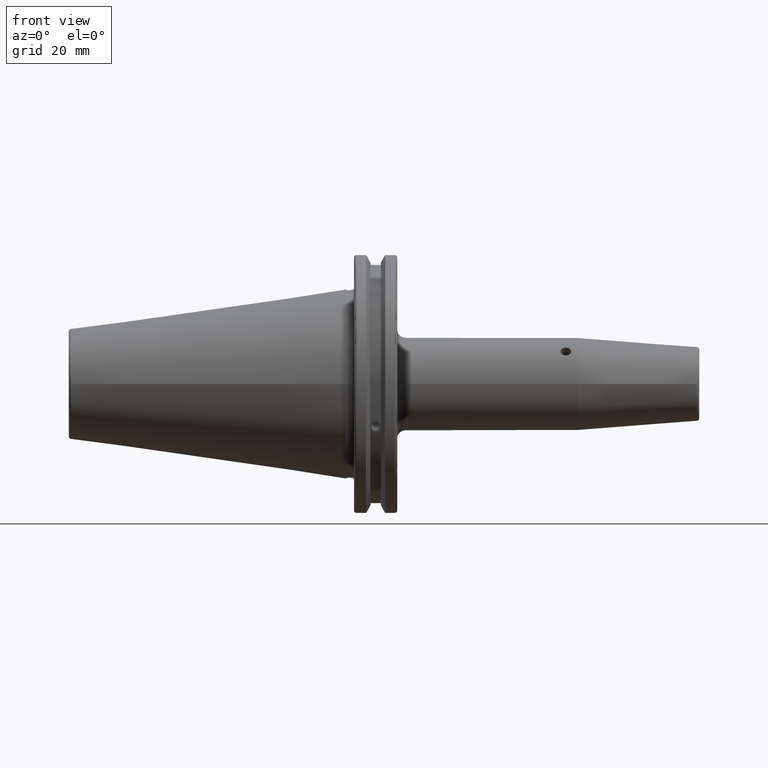
[diagram: clean part render]
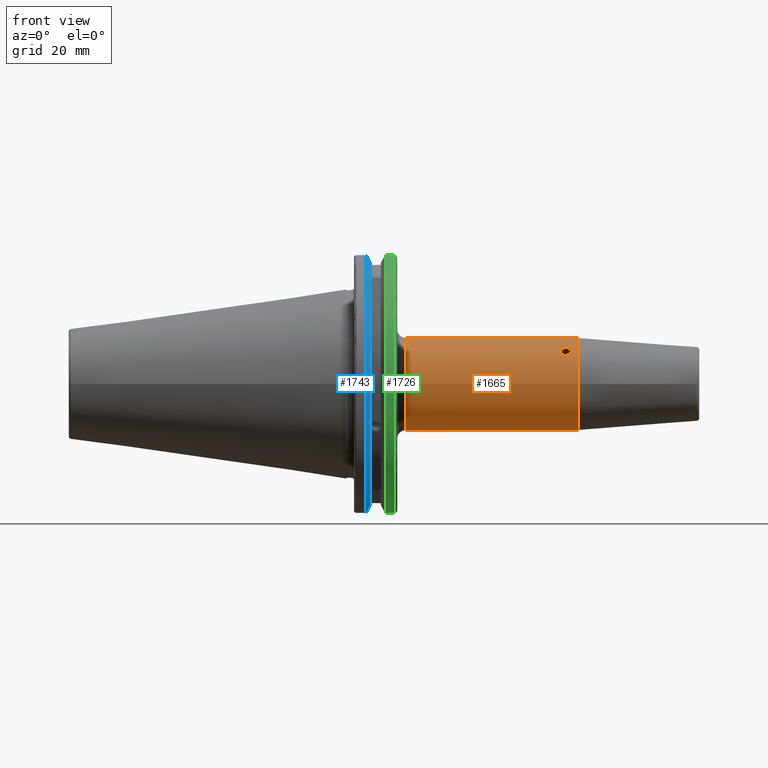
[diagram: same view with three faces highlighted in distinct colors, each labeled with its STEP entity id]
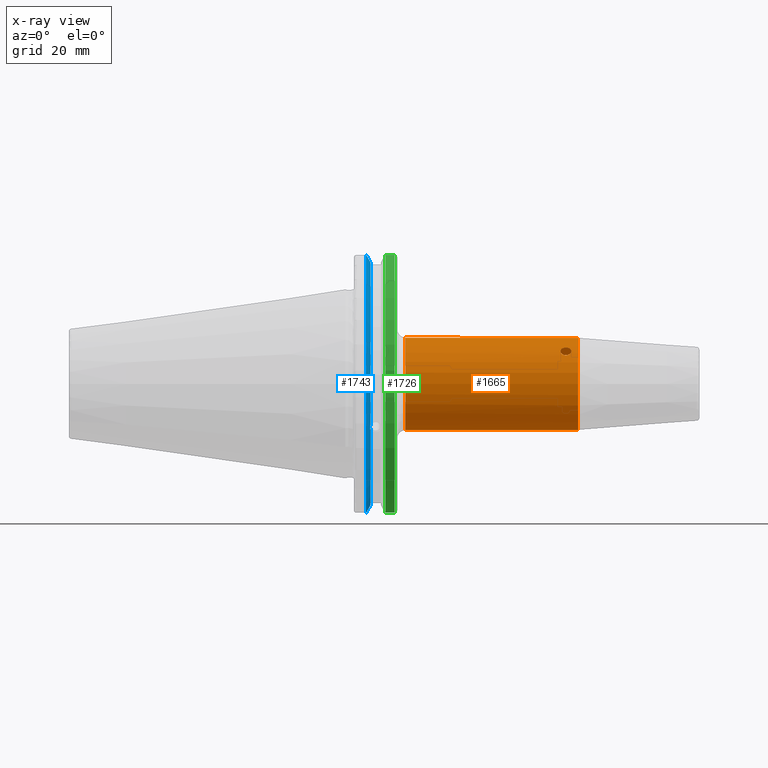
[diagram: x-ray of the same camera — body ghosted, the three highlighted faces saturated]
A machine part, front view with three faces highlighted in distinct colors.
The next image is the same camera in x-ray (body ghosted, the three faces saturated) — at least one of them is partly hidden behind the body in this view.
Their STEP definitions:

[orange] entity #1665 — the highlighted cylindrical surface (bore or boss wall) has radius 17 mm, axis along (1, 0, 0).
#34=FACE_BOUND('',#311,.T.);
#130=CIRCLE('',#1796,17.);
#131=CIRCLE('',#1798,17.);
#134=CIRCLE('',#1801,17.);
#212=FACE_OUTER_BOUND('',#310,.T.);
#310=EDGE_LOOP('',(#1184,#1185,#1186,#1187,#1188));
#311=EDGE_LOOP('',(#1189,#1190));
#429=B_SPLINE_CURVE_WITH_KNOTS('',3,(#2638,#2639,#2640,#2641,#2642,#2643,
#2644,#2645,#2646,#2647),.UNSPECIFIED.,.F.,.F.,(4,2,2,2,4),(0.,0.0754126000469099,
0.15082520009382,0.22623730663015,0.30164941316648),.UNSPECIFIED.);
#430=B_SPLINE_CURVE_WITH_KNOTS('',3,(#2648,#2649,#2650,#2651,#2652,#2653,
#2654,#2655,#2656,#2657,#2658,#2659,#2660,#2661,#2662,#2663,#2664,#2665,
#2666,#2667,#2668,#2669,#2670,#2671,#2672,#2673),.UNSPECIFIED.,.F.,.F.,
(4,2,2,2,2,2,2,2,2,2,2,2,4),(0.30164941316648,0.37706151970281,0.45247362623914,
0.527886226286049,0.603298826332958,0.678711426379868,0.754124026426777,
0.829536132963107,0.904948239499437,0.980360346035768,1.0557724525721,1.13118505261901,
1.20659765266592),.UNSPECIFIED.);
#478=LINE('',#2711,#579);
#579=VECTOR('',#2027,17.);
#694=VERTEX_POINT('',#2636);
#695=VERTEX_POINT('',#2637);
#703=VERTEX_POINT('',#2699);
#704=VERTEX_POINT('',#2703);
#705=VERTEX_POINT('',#2704);
#873=EDGE_CURVE('',#694,#695,#429,.T.);
#874=EDGE_CURVE('',#695,#694,#430,.T.);
#888=EDGE_CURVE('',#703,#703,#130,.T.);
#889=EDGE_CURVE('',#704,#705,#131,.T.);
#892=EDGE_CURVE('',#705,#704,#134,.T.);
#893=EDGE_CURVE('',#703,#704,#478,.T.);
#1184=ORIENTED_EDGE('',*,*,#888,.F.);
#1185=ORIENTED_EDGE('',*,*,#893,.T.);
#1186=ORIENTED_EDGE('',*,*,#892,.F.);
#1187=ORIENTED_EDGE('',*,*,#889,.F.);
#1188=ORIENTED_EDGE('',*,*,#893,.F.);
#1189=ORIENTED_EDGE('',*,*,#873,.T.);
#1190=ORIENTED_EDGE('',*,*,#874,.T.);
#1625=CYLINDRICAL_SURFACE('',#1802,17.);
#1665=ADVANCED_FACE('',(#212,#34),#1625,.T.);
#1796=AXIS2_PLACEMENT_3D('',#2701,#2013,#2014);
#1798=AXIS2_PLACEMENT_3D('',#2705,#2017,#2018);
#1801=AXIS2_PLACEMENT_3D('',#2709,#2023,#2024);
#1802=AXIS2_PLACEMENT_3D('',#2710,#2025,#2026);
#2013=DIRECTION('center_axis',(1.,0.,0.));
#2014=DIRECTION('ref_axis',(0.,0.,-1.));
#2017=DIRECTION('center_axis',(-1.,0.,0.));
#2018=DIRECTION('ref_axis',(0.,-1.,-1.22464679914735E-16));
#2023=DIRECTION('center_axis',(-1.,0.,0.));
#2024=DIRECTION('ref_axis',(0.,-1.,-1.22464679914735E-16));
#2025=DIRECTION('center_axis',(1.,0.,0.));
#2026=DIRECTION('ref_axis',(0.,1.,0.));
#2027=DIRECTION('',(-1.,0.,0.));
#2636=CARTESIAN_POINT('',(81.,-10.5231228239402,13.3515499486864));
#2637=CARTESIAN_POINT('',(83.,-12.0208152801713,12.0208152801713));
#2638=CARTESIAN_POINT('Ctrl Pts',(81.,-10.5231228239402,13.3515499486864));
#2639=CARTESIAN_POINT('Ctrl Pts',(81.2513753334897,-10.5231228239402,13.3515499486864));
#2640=CARTESIAN_POINT('Ctrl Pts',(81.5193455474418,-10.5630593289444,13.3203725372364));
#2641=CARTESIAN_POINT('Ctrl Pts',(82.0120344753946,-10.7232208565799,13.1917808242572));
#2642=CARTESIAN_POINT('Ctrl Pts',(82.2367732201471,-10.8432053092381,13.0941438477263));
#2643=CARTESIAN_POINT('Ctrl Pts',(82.5916527434048,-11.1150909025522,12.8641540062409));
#2644=CARTESIAN_POINT('Ctrl Pts',(82.7455352407202,-11.285145452808,12.7163792601007));
#2645=CARTESIAN_POINT('Ctrl Pts',(82.9497152845526,-11.6492377398047,12.3837017671472));
#2646=CARTESIAN_POINT('Ctrl Pts',(83.,-11.8430672404533,12.1985633198893));
#2647=CARTESIAN_POINT('Ctrl Pts',(83.,-12.0208152801713,12.0208152801713));
#2648=CARTESIAN_POINT('Ctrl Pts',(83.,-12.0208152801713,12.0208152801713));
#2649=CARTESIAN_POINT('Ctrl Pts',(83.,-12.1985633198893,11.8430672404533));
#2650=CARTESIAN_POINT('Ctrl Pts',(82.9497152845526,-12.3837017671472,11.6492377398047));
#2651=CARTESIAN_POINT('Ctrl Pts',(82.7455352407202,-12.7163792601007,11.285145452808));
#2652=CARTESIAN_POINT('Ctrl Pts',(82.5916527434047,-12.8641540062409,11.1150909025522));
#2653=CARTESIAN_POINT('Ctrl Pts',(82.2367732201471,-13.0941438477263,10.8432053092381));
#2654=CARTESIAN_POINT('Ctrl Pts',(82.0120344753946,-13.1917808242572,10.7232208565799));
#2655=CARTESIAN_POINT('Ctrl Pts',(81.5193455474418,-13.3203725372364,10.5630593289444));
#2656=CARTESIAN_POINT('Ctrl Pts',(81.2513753334897,-13.3515499486864,10.5231228239402));
#2657=CARTESIAN_POINT('Ctrl Pts',(80.7486246665103,-13.3515499486864,10.5231228239402));
#2658=CARTESIAN_POINT('Ctrl Pts',(80.4806544525582,-13.3203725372364,10.5630593289444));
#2659=CARTESIAN_POINT('Ctrl Pts',(79.9879655246054,-13.1917808242572,10.7232208565799));
#2660=CARTESIAN_POINT('Ctrl Pts',(79.7632267798529,-13.0941438477263,10.8432053092381));
#2661=CARTESIAN_POINT('Ctrl Pts',(79.4083472565953,-12.8641540062409,11.1150909025522));
#2662=CARTESIAN_POINT('Ctrl Pts',(79.2544647592798,-12.7163792601007,11.285145452808));
#2663=CARTESIAN_POINT('Ctrl Pts',(79.0502847154474,-12.3837017671472,11.6492377398047));
#2664=CARTESIAN_POINT('Ctrl Pts',(79.,-12.1985633198893,11.8430672404533));
#2665=CARTESIAN_POINT('Ctrl Pts',(79.,-11.8430672404533,12.1985633198893));
#2666=CARTESIAN_POINT('Ctrl Pts',(79.0502847154474,-11.6492377398047,12.3837017671472));
#2667=CARTESIAN_POINT('Ctrl Pts',(79.2544647592798,-11.285145452808,12.7163792601007));
#2668=CARTESIAN_POINT('Ctrl Pts',(79.4083472565953,-11.1150909025522,12.8641540062409));
#2669=CARTESIAN_POINT('Ctrl Pts',(79.7632267798529,-10.8432053092381,13.0941438477263));
#2670=CARTESIAN_POINT('Ctrl Pts',(79.9879655246054,-10.7232208565799,13.1917808242572));
#2671=CARTESIAN_POINT('Ctrl Pts',(80.4806544525582,-10.5630593289444,13.3203725372364));
#2672=CARTESIAN_POINT('Ctrl Pts',(80.7486246665103,-10.5231228239402,13.3515499486864));
#2673=CARTESIAN_POINT('Ctrl Pts',(81.,-10.5231228239402,13.3515499486864));
#2699=CARTESIAN_POINT('',(85.5282834233885,-17.,-2.0818995585505E-15));
#2701=CARTESIAN_POINT('Origin',(85.5282834233885,0.,0.));
#2703=CARTESIAN_POINT('',(22.05,-17.,-2.0818995585505E-15));
#2704=CARTESIAN_POINT('',(22.05,-2.0818995585505E-15,-17.));
#2705=CARTESIAN_POINT('Origin',(22.05,0.,0.));
#2709=CARTESIAN_POINT('Origin',(22.05,0.,0.));
#2710=CARTESIAN_POINT('Origin',(52.2891417116942,0.,0.));
#2711=CARTESIAN_POINT('',(52.2891417116942,-17.,-2.0818995585505E-15));

[blue] entity #1743 — the highlighted conical surface has half-angle 60 deg.
#25=(
BOUNDED_CURVE()
B_SPLINE_CURVE(2,(#3441,#3442,#3443),.UNSPECIFIED.,.F.,.F.)
B_SPLINE_CURVE_WITH_KNOTS((3,3),(0.,0.275823910674601),.UNSPECIFIED.)
CURVE()
GEOMETRIC_REPRESENTATION_ITEM()
RATIONAL_B_SPLINE_CURVE((1.,1.00038235573593,1.00012873636487))
REPRESENTATION_ITEM('')
);
#26=(
BOUNDED_CURVE()
B_SPLINE_CURVE(2,(#3453,#3454,#3455),.UNSPECIFIED.,.F.,.F.)
B_SPLINE_CURVE_WITH_KNOTS((3,3),(0.0558332664507492,0.331657177124507),
 .UNSPECIFIED.)
CURVE()
GEOMETRIC_REPRESENTATION_ITEM()
RATIONAL_B_SPLINE_CURVE((1.00012873636807,1.00038235574544,1.))
REPRESENTATION_ITEM('')
);
#27=(
BOUNDED_CURVE()
B_SPLINE_CURVE(2,(#3488,#3489,#3490),.UNSPECIFIED.,.F.,.F.)
B_SPLINE_CURVE_WITH_KNOTS((3,3),(0.,0.0648240472897372),.UNSPECIFIED.)
CURVE()
GEOMETRIC_REPRESENTATION_ITEM()
RATIONAL_B_SPLINE_CURVE((1.,1.00011477674836,1.00019140645948))
REPRESENTATION_ITEM('')
);
#28=(
BOUNDED_CURVE()
B_SPLINE_CURVE(2,(#3496,#3497,#3498),.UNSPECIFIED.,.F.,.F.)
B_SPLINE_CURVE_WITH_KNOTS((3,3),(0.325260944932348,0.390084992222201),
 .UNSPECIFIED.)
CURVE()
GEOMETRIC_REPRESENTATION_ITEM()
RATIONAL_B_SPLINE_CURVE((1.00019140645916,1.00011477674817,1.))
REPRESENTATION_ITEM('')
);
#117=CONICAL_SURFACE('',#1943,47.8172386482472,1.0471975511966);
#156=CIRCLE('',#1846,46.4219772964944);
#180=CIRCLE('',#1897,49.2125);
#196=CIRCLE('',#1944,46.4219772964944);
#290=FACE_OUTER_BOUND('',#410,.T.);
#410=EDGE_LOOP('',(#1599,#1600,#1601,#1602,#1603,#1604,#1605,#1606));
#441=B_SPLINE_CURVE_WITH_KNOTS('',3,(#2977,#2978,#2979,#2980,#2981,#2982,
#2983,#2984,#2985,#2986,#2987,#2988,#2989,#2990),.UNSPECIFIED.,.F.,.F.,
(4,2,2,2,2,2,4),(0.426712868358719,0.441644498666906,0.48031331322313,0.518982127779354,
0.557650942335578,0.596319756891801,0.611251387199988),.UNSPECIFIED.);
#742=VERTEX_POINT('',#2974);
#743=VERTEX_POINT('',#2976);
#760=VERTEX_POINT('',#3067);
#820=VERTEX_POINT('',#3438);
#821=VERTEX_POINT('',#3440);
#824=VERTEX_POINT('',#3452);
#828=VERTEX_POINT('',#3486);
#829=VERTEX_POINT('',#3492);
#938=EDGE_CURVE('',#743,#742,#441,.T.);
#961=EDGE_CURVE('',#743,#760,#156,.T.);
#1043=EDGE_CURVE('',#821,#820,#25,.T.);
#1049=EDGE_CURVE('',#824,#760,#26,.T.);
#1057=EDGE_CURVE('',#828,#820,#27,.T.);
#1059=EDGE_CURVE('',#828,#829,#180,.T.);
#1060=EDGE_CURVE('',#824,#829,#28,.T.);
#1102=EDGE_CURVE('',#821,#742,#196,.T.);
#1599=ORIENTED_EDGE('',*,*,#938,.T.);
#1600=ORIENTED_EDGE('',*,*,#1102,.F.);
#1601=ORIENTED_EDGE('',*,*,#1043,.T.);
#1602=ORIENTED_EDGE('',*,*,#1057,.F.);
#1603=ORIENTED_EDGE('',*,*,#1059,.T.);
#1604=ORIENTED_EDGE('',*,*,#1060,.F.);
#1605=ORIENTED_EDGE('',*,*,#1049,.T.);
#1606=ORIENTED_EDGE('',*,*,#961,.F.);
#1743=ADVANCED_FACE('',(#290),#117,.T.);
#1846=AXIS2_PLACEMENT_3D('',#3068,#2142,#2143);
#1897=AXIS2_PLACEMENT_3D('',#3494,#2286,#2287);
#1943=AXIS2_PLACEMENT_3D('',#3610,#2399,#2400);
#1944=AXIS2_PLACEMENT_3D('',#3611,#2401,#2402);
#2142=DIRECTION('center_axis',(1.,0.,0.));
#2143=DIRECTION('ref_axis',(0.,0.,-1.));
#2286=DIRECTION('center_axis',(1.,0.,0.));
#2287=DIRECTION('ref_axis',(0.,0.,-1.));
#2399=DIRECTION('center_axis',(-1.,0.,0.));
#2400=DIRECTION('ref_axis',(0.,-1.,-1.22464679914735E-16));
#2401=DIRECTION('center_axis',(1.,0.,0.));
#2402=DIRECTION('ref_axis',(0.,0.,-1.));
#2974=CARTESIAN_POINT('',(9.2191,-43.9096390749305,-15.0646464421033));
#2976=CARTESIAN_POINT('',(9.2191,-43.3201030900029,-16.684383248648));
#2977=CARTESIAN_POINT('Ctrl Pts',(9.21910000000001,-43.3201030900029,-16.6843832486479));
#2978=CARTESIAN_POINT('Ctrl Pts',(9.20211843903392,-43.3613106941341,-16.6592273018006));
#2979=CARTESIAN_POINT('Ctrl Pts',(9.18608675403322,-43.4012416983557,-16.6326763251437));
#2980=CARTESIAN_POINT('Ctrl Pts',(9.13238673845037,-43.5391037343221,-16.5325130832406));
#2981=CARTESIAN_POINT('Ctrl Pts',(9.09621610663556,-43.6406982153491,-16.441180795372));
#2982=CARTESIAN_POINT('Ctrl Pts',(9.04690868251975,-43.8110833825827,-16.2291323464527));
#2983=CARTESIAN_POINT('Ctrl Pts',(9.0341,-43.8794096049168,-16.10796730316));
#2984=CARTESIAN_POINT('Ctrl Pts',(9.0341,-43.9675796948952,-15.8657219718732));
#2985=CARTESIAN_POINT('Ctrl Pts',(9.04690868251975,-43.9931221605126,-15.7289849146254));
#2986=CARTESIAN_POINT('Ctrl Pts',(9.09621610663556,-43.9989016655819,-15.4570249042867));
#2987=CARTESIAN_POINT('Ctrl Pts',(9.13238673845037,-43.9797830409458,-15.3217566390708));
#2988=CARTESIAN_POINT('Ctrl Pts',(9.18608675403322,-43.9385582852181,-15.1564111356409));
#2989=CARTESIAN_POINT('Ctrl Pts',(9.20211843903392,-43.9250360001461,-15.1104047527575));
#2990=CARTESIAN_POINT('Ctrl Pts',(9.2191,-43.9096390749305,-15.0646464421033));
#3067=CARTESIAN_POINT('',(9.2191,-12.95,-44.5791147973604));
#3068=CARTESIAN_POINT('Origin',(9.2191,0.,0.));
#3438=CARTESIAN_POINT('',(7.88638960562424,-12.95,46.9780755322918));
#3440=CARTESIAN_POINT('',(9.2191,-12.95,44.5791147973604));
#3441=CARTESIAN_POINT('Ctrl Pts',(9.2191,-12.95,44.5791147973604));
#3442=CARTESIAN_POINT('Ctrl Pts',(8.57020449055857,-12.95,45.7494966802148));
#3443=CARTESIAN_POINT('Ctrl Pts',(7.88638960562424,-12.95,46.9780755322918));
#3452=CARTESIAN_POINT('',(7.88638960562425,-12.95,-46.9780755322918));
#3453=CARTESIAN_POINT('Ctrl Pts',(7.88638960562425,-12.95,-46.9780755322918));
#3454=CARTESIAN_POINT('Ctrl Pts',(8.57020449054166,-12.95,-45.7494966802452));
#3455=CARTESIAN_POINT('Ctrl Pts',(9.2191,-12.95,-44.5791147973604));
#3486=CARTESIAN_POINT('',(7.60799096595127,-13.4317035994433,47.3440544806494));
#3488=CARTESIAN_POINT('Ctrl Pts',(7.60799096595126,-13.4317035994433,47.3440544806494));
#3489=CARTESIAN_POINT('Ctrl Pts',(7.7482689666382,-13.1896660169966,47.1601640966265));
#3490=CARTESIAN_POINT('Ctrl Pts',(7.88638960562424,-12.95,46.9780755322918));
#3492=CARTESIAN_POINT('',(7.60799096595127,-13.4317035994433,-47.3440544806494));
#3494=CARTESIAN_POINT('Origin',(7.60799096595127,0.,0.));
#3496=CARTESIAN_POINT('Ctrl Pts',(7.88638960562425,-12.95,-46.9780755322918));
#3497=CARTESIAN_POINT('Ctrl Pts',(7.74826896663813,-13.1896660169967,-47.1601640966265));
#3498=CARTESIAN_POINT('Ctrl Pts',(7.60799096595127,-13.4317035994434,-47.3440544806494));
#3610=CARTESIAN_POINT('Origin',(8.41354548297563,0.,0.));
#3611=CARTESIAN_POINT('Origin',(9.2191,0.,0.));

[green] entity #1726 — the highlighted cylindrical surface (partial cylindrical patch) has radius 49.2125 mm, axis along (1, 0, 0).
#152=CIRCLE('',#1839,49.2125);
#178=CIRCLE('',#1890,49.2125);
#273=FACE_OUTER_BOUND('',#391,.T.);
#391=EDGE_LOOP('',(#1528,#1529,#1530,#1531));
#561=LINE('',#3567,#662);
#562=LINE('',#3569,#663);
#662=VECTOR('',#2340,10.);
#663=VECTOR('',#2343,10.);
#754=VERTEX_POINT('',#3043);
#755=VERTEX_POINT('',#3047);
#817=VERTEX_POINT('',#3410);
#818=VERTEX_POINT('',#3419);
#953=EDGE_CURVE('',#755,#754,#152,.T.);
#1038=EDGE_CURVE('',#817,#818,#178,.T.);
#1084=EDGE_CURVE('',#818,#754,#561,.T.);
#1085=EDGE_CURVE('',#755,#817,#562,.T.);
#1528=ORIENTED_EDGE('',*,*,#1038,.F.);
#1529=ORIENTED_EDGE('',*,*,#1085,.F.);
#1530=ORIENTED_EDGE('',*,*,#953,.T.);
#1531=ORIENTED_EDGE('',*,*,#1084,.F.);
#1645=CYLINDRICAL_SURFACE('',#1918,49.2125);
#1726=ADVANCED_FACE('',(#273),#1645,.T.);
#1839=AXIS2_PLACEMENT_3D('',#3048,#2126,#2127);
#1890=AXIS2_PLACEMENT_3D('',#3420,#2261,#2262);
#1918=AXIS2_PLACEMENT_3D('',#3568,#2341,#2342);
#2126=DIRECTION('center_axis',(1.,0.,0.));
#2127=DIRECTION('ref_axis',(0.,0.,-1.));
#2261=DIRECTION('center_axis',(1.,0.,0.));
#2262=DIRECTION('ref_axis',(0.,-1.,1.60812264967664E-16));
#2340=DIRECTION('',(-1.,0.,0.));
#2341=DIRECTION('center_axis',(1.,0.,0.));
#2342=DIRECTION('ref_axis',(0.,-1.,1.22464679914735E-16));
#2343=DIRECTION('',(1.,0.,0.));
#3043=CARTESIAN_POINT('',(14.6602090340487,-13.4317035994433,-47.3440544806494));
#3047=CARTESIAN_POINT('',(14.6602090340487,-13.4317035994433,47.3440544806494));
#3048=CARTESIAN_POINT('Origin',(14.6602090340487,0.,0.));
#3410=CARTESIAN_POINT('',(18.05,-13.4317035994433,47.3440544806494));
#3419=CARTESIAN_POINT('',(18.05,-13.4317035994433,-47.3440544806494));
#3420=CARTESIAN_POINT('Origin',(18.05,0.,0.));
#3567=CARTESIAN_POINT('',(16.8551045170244,-13.4317035994433,-47.3440544806494));
#3568=CARTESIAN_POINT('Origin',(16.8551045170244,0.,0.));
#3569=CARTESIAN_POINT('',(16.8551045170244,-13.4317035994433,47.3440544806494));